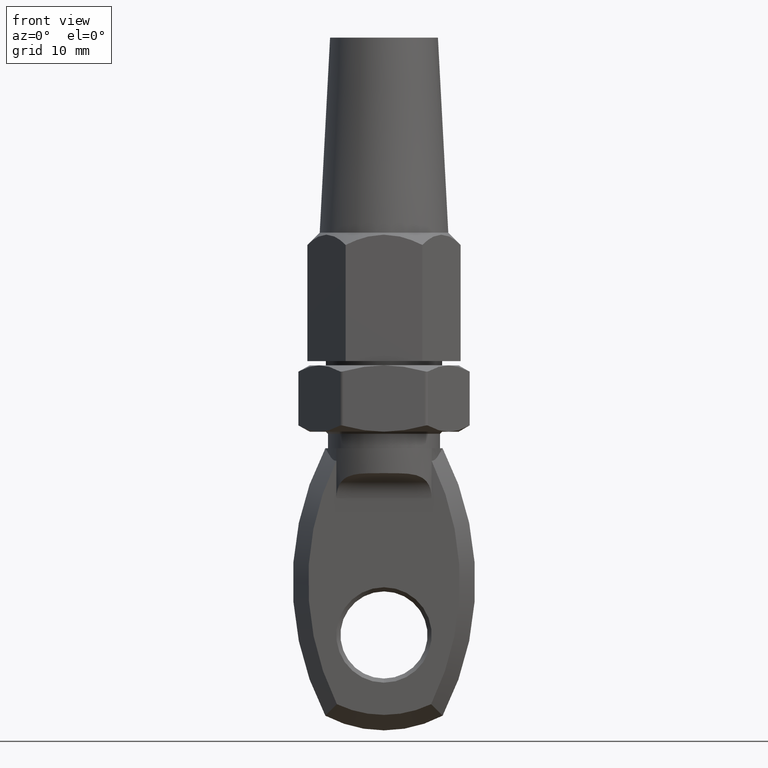
[diagram: clean part render]
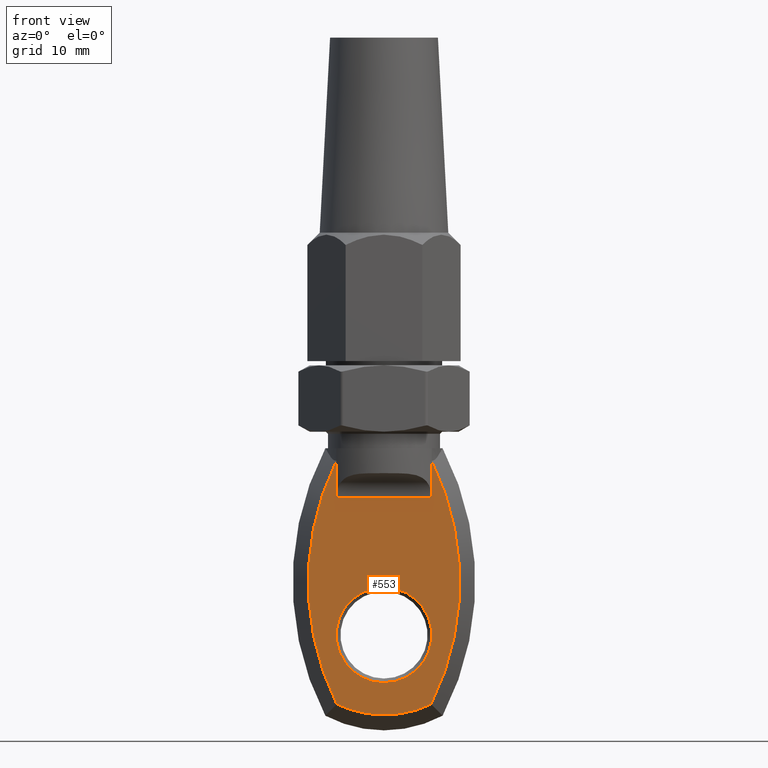
[diagram: same view with one face highlighted and labeled with its STEP entity id]
A machine part, front view. The second image highlights one B-rep face of the part: STEP entity #553.
In plain terms, the highlighted planar face has unit normal (0, -1, 0).
Its self-contained STEP definition (entity closure, byte-faithful):
#252 = CARTESIAN_POINT ( 'NONE',  ( 0.0000000000000000000, -4.000000000000000000, -22.50000000000011000 ) ) ;
#305 = CARTESIAN_POINT ( 'NONE',  ( 24.00000000000000400, -4.000000000000000000, -16.11479982947690500 ) ) ;
#553 = ADVANCED_FACE ( 'NONE', ( #18357, #18831 ), #5267, .T. ) ;
#619 = AXIS2_PLACEMENT_3D ( 'NONE', #11333, #14310, #9895 ) ;
#691 = EDGE_CURVE ( 'NONE', #19269, #10573, #17201, .T. ) ;
#825 = ORIENTED_EDGE ( 'NONE', *, *, #14075, .F. ) ;
#848 = DIRECTION ( 'NONE',  ( 0.0000000000000000000, 0.0000000000000000000, -1.000000000000000000 ) ) ;
#1051 = ORIENTED_EDGE ( 'NONE', *, *, #12607, .F. ) ;
#1180 = EDGE_CURVE ( 'NONE', #2877, #14869, #4103, .T. ) ;
#1414 = CARTESIAN_POINT ( 'NONE',  ( 0.0000000000000000000, -4.000000000000000000, -32.13476936738011600 ) ) ;
#1754 = DIRECTION ( 'NONE',  ( -0.0000000000000000000, -0.0000000000000000000, 1.000000000000000000 ) ) ;
#2444 = DIRECTION ( 'NONE',  ( 0.0000000000000000000, 0.0000000000000000000, 1.000000000000000000 ) ) ;
#2486 = CARTESIAN_POINT ( 'NONE',  ( 0.0000000000000000000, -4.000000000000000000, -22.50000000000011000 ) ) ;
#2518 = CARTESIAN_POINT ( 'NONE',  ( -5.681918644637108600, -4.000000000000000000, -30.84221123143795400 ) ) ;
#2616 = ORIENTED_EDGE ( 'NONE', *, *, #18760, .F. ) ;
#2832 = LINE ( 'NONE', #18083, #17787 ) ;
#2877 = VERTEX_POINT ( 'NONE', #8176 ) ;
#3170 = CIRCLE ( 'NONE', #8043, 13.13476936738011100 ) ;
#3183 = DIRECTION ( 'NONE',  ( -1.000000000000000000, -0.0000000000000000000, 0.0000000000000000000 ) ) ;
#3273 = VERTEX_POINT ( 'NONE', #6781 ) ;
#3362 = CARTESIAN_POINT ( 'NONE',  ( 0.0000000000000000000, -4.000000000000000000, -28.25000000000012800 ) ) ;
#4103 = CIRCLE ( 'NONE', #13387, 33.13476936738007300 ) ;
#4254 = AXIS2_PLACEMENT_3D ( 'NONE', #252, #17925, #8987 ) ;
#4710 = DIRECTION ( 'NONE',  ( -0.0000000000000000000, 1.000000000000000000, -0.0000000000000000000 ) ) ;
#5098 = CARTESIAN_POINT ( 'NONE',  ( 5.744562646538028600, -4.000000000000000000, -5.999999999999997300 ) ) ;
#5267 = PLANE ( 'NONE',  #16630 ) ;
#5486 = DIRECTION ( 'NONE',  ( -0.0000000000000000000, 1.000000000000000000, -0.0000000000000000000 ) ) ;
#5960 = LINE ( 'NONE', #9084, #17877 ) ;
#6559 = VECTOR ( 'NONE', #3183, 1000.000000000000000 ) ;
#6572 = ORIENTED_EDGE ( 'NONE', *, *, #691, .T. ) ;
#6781 = CARTESIAN_POINT ( 'NONE',  ( -5.744562646538028600, -3.999999999999999100, -5.999999999999999100 ) ) ;
#6949 = DIRECTION ( 'NONE',  ( -0.0000000000000000000, 1.000000000000000000, -0.0000000000000000000 ) ) ;
#7201 = AXIS2_PLACEMENT_3D ( 'NONE', #305, #4710, #10659 ) ;
#7248 = EDGE_CURVE ( 'NONE', #10573, #19269, #12180, .T. ) ;
#7593 = EDGE_CURVE ( 'NONE', #18849, #3273, #8666, .T. ) ;
#7612 = VERTEX_POINT ( 'NONE', #1414 ) ;
#8043 = AXIS2_PLACEMENT_3D ( 'NONE', #14436, #6949, #10015 ) ;
#8176 = CARTESIAN_POINT ( 'NONE',  ( 5.744562646538022400, -4.000000000000000000, -1.514322645643384500 ) ) ;
#8666 = LINE ( 'NONE', #10623, #6559 ) ;
#8839 = ORIENTED_EDGE ( 'NONE', *, *, #7248, .T. ) ;
#8909 = ORIENTED_EDGE ( 'NONE', *, *, #1180, .F. ) ;
#8987 = DIRECTION ( 'NONE',  ( 0.0000000000000000000, 0.0000000000000000000, -1.000000000000000000 ) ) ;
#9048 = CARTESIAN_POINT ( 'NONE',  ( 5.681918644637110400, -4.000000000000000000, -30.84221123143795400 ) ) ;
#9084 = CARTESIAN_POINT ( 'NONE',  ( 5.744562646538028600, -3.999999999999999100, -13.00000000000000000 ) ) ;
#9503 = CARTESIAN_POINT ( 'NONE',  ( -5.744562646538022400, -4.000000000000000000, -1.514322645643384500 ) ) ;
#9766 = VERTEX_POINT ( 'NONE', #9503 ) ;
#9895 = DIRECTION ( 'NONE',  ( 0.0000000000000000000, 0.0000000000000000000, -1.000000000000000000 ) ) ;
#10015 = DIRECTION ( 'NONE',  ( -5.329070518200749800E-015, 0.0000000000000000000, -1.000000000000000000 ) ) ;
#10462 = CARTESIAN_POINT ( 'NONE',  ( -24.00000000000000400, -4.000000000000000000, -16.11479982947690500 ) ) ;
#10573 = VERTEX_POINT ( 'NONE', #18789 ) ;
#10623 = CARTESIAN_POINT ( 'NONE',  ( -5.744562646538028600, -4.000000000000000000, -5.999999999999997300 ) ) ;
#10659 = DIRECTION ( 'NONE',  ( 0.0000000000000000000, 0.0000000000000000000, -1.000000000000000000 ) ) ;
#11333 = CARTESIAN_POINT ( 'NONE',  ( 0.0000000000000000000, -4.000000000000000000, -19.00000000000000400 ) ) ;
#11981 = DIRECTION ( 'NONE',  ( -0.0000000000000000000, 1.000000000000000000, -0.0000000000000000000 ) ) ;
#12180 = CIRCLE ( 'NONE', #13490, 5.750000000000018700 ) ;
#12281 = DIRECTION ( 'NONE',  ( -0.0000000000000000000, -0.0000000000000000000, 1.000000000000000000 ) ) ;
#12607 = EDGE_CURVE ( 'NONE', #7612, #17783, #15810, .T. ) ;
#12774 = CARTESIAN_POINT ( 'NONE',  ( 24.00000000000000400, -4.000000000000000000, -16.11479982947690500 ) ) ;
#13387 = AXIS2_PLACEMENT_3D ( 'NONE', #10462, #11981, #17708 ) ;
#13490 = AXIS2_PLACEMENT_3D ( 'NONE', #2486, #5486, #848 ) ;
#14075 = EDGE_CURVE ( 'NONE', #14869, #7612, #3170, .T. ) ;
#14310 = DIRECTION ( 'NONE',  ( -0.0000000000000000000, 1.000000000000000000, -0.0000000000000000000 ) ) ;
#14432 = EDGE_CURVE ( 'NONE', #18849, #2877, #5960, .T. ) ;
#14436 = CARTESIAN_POINT ( 'NONE',  ( 0.0000000000000000000, -4.000000000000000000, -19.00000000000000400 ) ) ;
#14869 = VERTEX_POINT ( 'NONE', #9048 ) ;
#15610 = CIRCLE ( 'NONE', #7201, 33.13476936738007300 ) ;
#15722 = EDGE_CURVE ( 'NONE', #3273, #9766, #2832, .T. ) ;
#15810 = CIRCLE ( 'NONE', #619, 13.13476936738011100 ) ;
#15870 = ORIENTED_EDGE ( 'NONE', *, *, #14432, .F. ) ;
#16586 = ORIENTED_EDGE ( 'NONE', *, *, #15722, .T. ) ;
#16630 = AXIS2_PLACEMENT_3D ( 'NONE', #12774, #17390, #2444 ) ;
#16831 = EDGE_LOOP ( 'NONE', ( #6572, #8839 ) ) ;
#17201 = CIRCLE ( 'NONE', #4254, 5.750000000000018700 ) ;
#17390 = DIRECTION ( 'NONE',  ( 0.0000000000000000000, -1.000000000000000000, 0.0000000000000000000 ) ) ;
#17708 = DIRECTION ( 'NONE',  ( -3.560042777377868600E-015, 0.0000000000000000000, -1.000000000000000000 ) ) ;
#17783 = VERTEX_POINT ( 'NONE', #2518 ) ;
#17787 = VECTOR ( 'NONE', #12281, 1000.000000000000000 ) ;
#17877 = VECTOR ( 'NONE', #1754, 1000.000000000000000 ) ;
#17925 = DIRECTION ( 'NONE',  ( -0.0000000000000000000, 1.000000000000000000, -0.0000000000000000000 ) ) ;
#18083 = CARTESIAN_POINT ( 'NONE',  ( -5.744562646538028600, -3.999999999999999100, -13.00000000000000000 ) ) ;
#18357 = FACE_BOUND ( 'NONE', #16831, .T. ) ;
#18543 = EDGE_LOOP ( 'NONE', ( #16586, #2616, #1051, #825, #8909, #15870, #18754 ) ) ;
#18754 = ORIENTED_EDGE ( 'NONE', *, *, #7593, .T. ) ;
#18760 = EDGE_CURVE ( 'NONE', #17783, #9766, #15610, .T. ) ;
#18789 = CARTESIAN_POINT ( 'NONE',  ( 7.041719095097303600E-016, -4.000000000000000000, -16.75000000000009200 ) ) ;
#18831 = FACE_OUTER_BOUND ( 'NONE', #18543, .T. ) ;
#18849 = VERTEX_POINT ( 'NONE', #5098 ) ;
#19269 = VERTEX_POINT ( 'NONE', #3362 ) ;